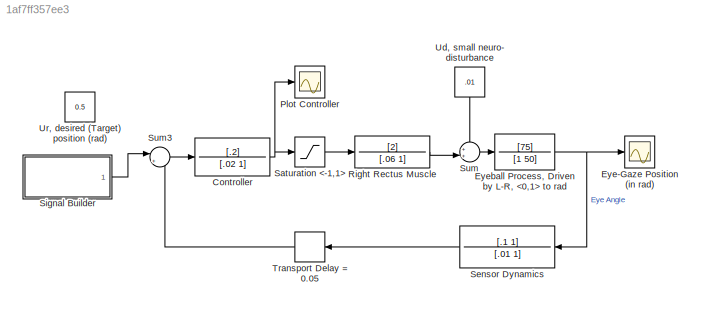
MODEL slx_1af7ff357ee3
KIND model
CONFIG AbsTol = auto
CONFIG EnableMultiTasking = on
CONFIG FixedStep = .0001
CONFIG MaxStep = .002
CONFIG MinStep = auto
CONFIG RelTol = 1e-3
CONFIG SampleTimeConstraint = Unconstrained
CONFIG Solver = ode45
CONFIG SolverName = ode45
CONFIG StartTime = 0.0
CONFIG StopTime = 0.5
BLOCK [TransferFcn] Controller
  Denominator = [.02 1]
  Numerator = [.2]
BLOCK [Scope] Eye-Gaze Position (in rad)
  NumInputPorts = 1
  Ports = [1]
  ScopeSpecificationString = Simulink.scopes.TimeScopeBlockCfg('CurrentConfiguration', extmgr.ConfigurationSet(extmgr.Configuration('Core','General UI',true),extmgr.Configuration('Core','Source UI',true),extmgr.Configuration('Sources','WiredSimulink',true,'DataLoggingVariableName','ScopeData2','DataLoggingSaveFormat','StructureWithTime','DataLoggingLimitDataPoints',true,'DataLoggingDecimation','1','DataLoggingDecimateData',tr...<+1727ch>
BLOCK [TransferFcn] Eyeball Process, Driven by L-R, <0,1> to rad
  Denominator = [1 50]
  Numerator = [75]
BLOCK [Scope] Plot Controller 
  NumInputPorts = 1
  Ports = [1]
  ScopeSpecificationString = C++SS(StrPVP('Location','[1333, 323, 1915, 589]'),StrPVP('Open','off'),StrPVP('ZoomMode','xonly'),MxPVP('AxesTitles',53,'struct(''axes1'',''%<SignalLabel>'')'),MxPVP('ScopeGraphics',56,'struct(''FigureColor'',''[0.501960784313725 0.501960784313725 0.501960784313725]'',''AxesColor'',''[0 0 0]'',''AxesTickColor'',''[1 1 1]'',''LineColors'',''[1 1 0;1 0 1;0 1 1;1 0 0;0 1 0;0 0 1]'',''LineStyles'',''-...<+373ch>
BLOCK [TransferFcn] Right Rectus Muscle
  Denominator = [.06 1]
  Numerator = [2]
BLOCK [Saturate] Saturation <-1,1>
  InputPortMap = u0
  LowerLimit = -1
  Ports = [1, 1]
  UpperLimit = 1
BLOCK [TransferFcn] Sensor Dynamics
  Denominator = [.01 1]
  Numerator = [.1 1]
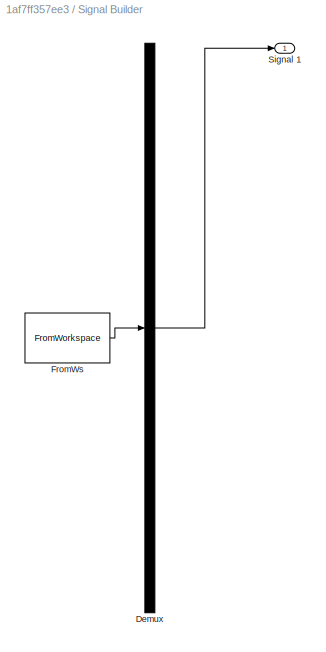
BLOCK [SubSystem] Signal Builder
  ClipboardFcn = sigbuilder_block('clipboard');
  CloseFcn = sigbuilder_block('close');
  ContinueFcn = sigbuilder_block('continue');
  CopyFcn = sigbuilder_block('copy');
  DeleteFcn = sigbuilder_block('delete');
  LoadFcn = sigbuilder_block('load',[437.6 199.2 550.4 400 ]);
  MaskHideContents = on
  ModelCloseFcn = sigbuilder_block('modelClose');
  NameChangeFcn = sigbuilder_block('namechange');
  OpenFcn = sigbuilder_block('open',[437.6 199.2 550.4 400 ]);
  PauseFcn = sigbuilder_block('pause');
  Ports = [0, 1]
  PreSaveFcn = sigbuilder_block('preSave');
  RequestExecContextInheritance = off
  StartFcn = sigbuilder_block('start');
  StopFcn = sigbuilder_block('stop');
  Tag = STV Subsys
  Variant = off
BLOCK [Demux] Signal Builder/Demux
  Outputs = 1
  Ports = [1, 1]
  Tag = STV Demux
BLOCK [FromWorkspace] Signal Builder/FromWs
  SampleTime = 0
  Tag = STV FromWs
  VariableName = tuvar
  ZeroCross = on
BLOCK [Outport] Signal Builder/Signal 1
  IconDisplay = Port number
  Tag = STV Outport
BLOCK [Sum] Sum
  IconShape = round
  InputSameDT = off
  Inputs = ++|
  OutDataTypeStr = Inherit: Inherit via internal rule
  Ports = [2, 1]
  SaturateOnIntegerOverflow = off
BLOCK [Sum] Sum3
  IconShape = round
  InputSameDT = off
  Inputs = |+-
  OutDataTypeStr = Inherit: Inherit via internal rule
  Ports = [2, 1]
  SaturateOnIntegerOverflow = off
BLOCK [TransportDelay] Transport Delay = 0.05
  DelayTime = .05
  Ports = [1, 1]
BLOCK [Constant] Ud, small neuro- disturbance
  Value = .01
BLOCK [Constant] Ur, desired (Target) position (rad)
  Value = 0.5
NET Controller:1 -> Plot Controller :1, Saturation <-1,1>:1
NET Eyeball Process, Driven by L-R, <0,1> to rad:1 -> Eye-Gaze Position (in rad):1, Sensor Dynamics:1
LINE Right Rectus Muscle:1 -> Sum:2
LINE Saturation <-1,1>:1 -> Right Rectus Muscle:1
LINE Sensor Dynamics:1 -> Transport Delay = 0.05:1
LINE Signal Builder:1 -> Sum3:1
LINE Sum3:1 -> Controller:1
LINE Sum:1 -> Eyeball Process, Driven by L-R, <0,1> to rad:1
LINE Transport Delay = 0.05:1 -> Sum3:2
LINE Ud, small neuro- disturbance:1 -> Sum:1
note: NET lines group one-source signal fan-out (src -> all destinations, sorted); 1:1 wires keep LINE
